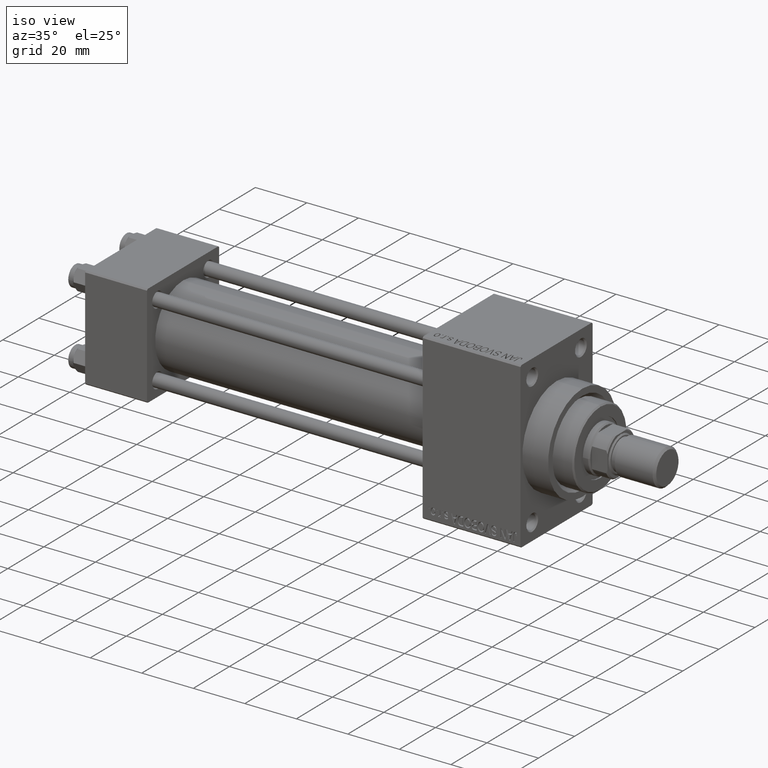
[diagram: clean part render]
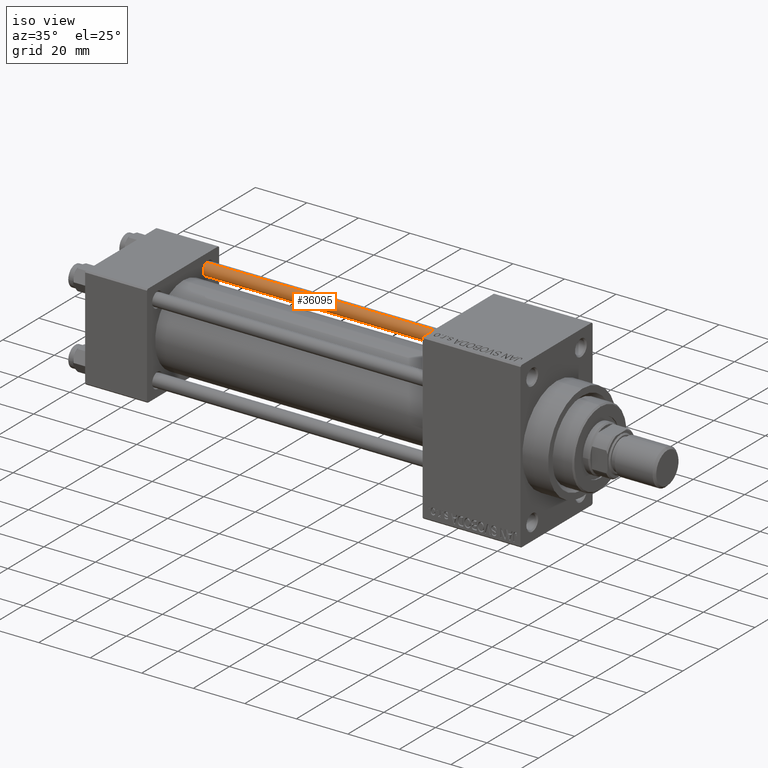
[diagram: same view with one face highlighted and labeled with its STEP entity id]
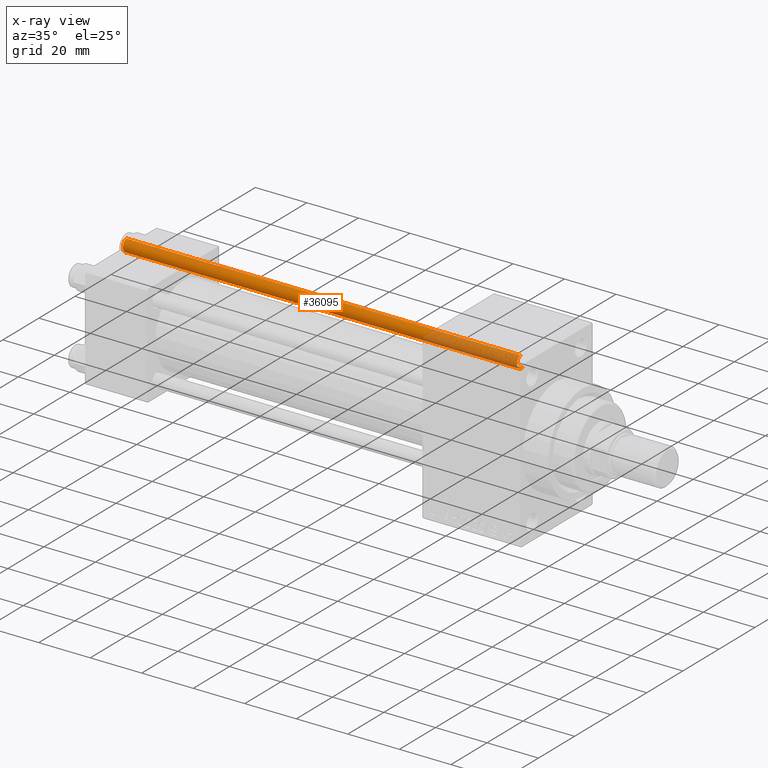
[diagram: x-ray of the same camera — body ghosted, the highlighted face saturated]
A machine part, iso view. The second image highlights one B-rep face of the part: STEP entity #36095.
The next image is the same camera in x-ray: the body ghosted, the highlighted face saturated — about 23% of this face is hidden behind the body in this view.
In plain terms, the highlighted cylindrical surface (edge-blend (fillet) strip) has radius 2.5 mm, axis along (-1, -0, 0).
Its self-contained STEP definition (entity closure, byte-faithful):
#449 = ORIENTED_EDGE ( 'NONE', *, *, #18768, .T. ) ;
#2078 = CARTESIAN_POINT ( 'NONE',  ( 2.500000000000000000, 3.061616997868383141E-16, 153.5000000000000284 ) ) ;
#2536 = ORIENTED_EDGE ( 'NONE', *, *, #16004, .T. ) ;
#4930 = CYLINDRICAL_SURFACE ( 'NONE', #43226, 2.500000000000000000 ) ;
#6013 = VECTOR ( 'NONE', #23324, 1000.000000000000000 ) ;
#8427 = LINE ( 'NONE', #15868, #6013 ) ;
#8439 = VERTEX_POINT ( 'NONE', #2078 ) ;
#9798 = CIRCLE ( 'NONE', #36675, 2.500000000000000000 ) ;
#12154 = EDGE_LOOP ( 'NONE', ( #16756, #2536, #17245, #449 ) ) ;
#14296 = CIRCLE ( 'NONE', #19659, 2.500000000000000000 ) ;
#15766 = DIRECTION ( 'NONE',  ( -0.000000000000000000, -0.000000000000000000, -1.000000000000000000 ) ) ;
#15868 = CARTESIAN_POINT ( 'NONE',  ( 2.500000000000000000, 3.061616997868383141E-16, 154.0000000000000000 ) ) ;
#16004 = EDGE_CURVE ( 'NONE', #8439, #18882, #14296, .T. ) ;
#16756 = ORIENTED_EDGE ( 'NONE', *, *, #42812, .F. ) ;
#17245 = ORIENTED_EDGE ( 'NONE', *, *, #41488, .T. ) ;
#18768 = EDGE_CURVE ( 'NONE', #37721, #31385, #9798, .T. ) ;
#18882 = VERTEX_POINT ( 'NONE', #41752 ) ;
#19659 = AXIS2_PLACEMENT_3D ( 'NONE', #30690, #32932, #29567 ) ;
#19934 = LINE ( 'NONE', #20169, #25226 ) ;
#20169 = CARTESIAN_POINT ( 'NONE',  ( -2.500000000000000000, 0.000000000000000000, 154.0000000000000000 ) ) ;
#23223 = CARTESIAN_POINT ( 'NONE',  ( 0.000000000000000000, 0.000000000000000000, 154.0000000000000000 ) ) ;
#23324 = DIRECTION ( 'NONE',  ( -0.000000000000000000, -0.000000000000000000, -1.000000000000000000 ) ) ;
#25226 = VECTOR ( 'NONE', #34354, 1000.000000000000000 ) ;
#28257 = CARTESIAN_POINT ( 'NONE',  ( -2.500000000000000000, 0.000000000000000000, 0.5000000000000281997 ) ) ;
#29108 = DIRECTION ( 'NONE',  ( -0.000000000000000000, -0.000000000000000000, 1.000000000000000000 ) ) ;
#29567 = DIRECTION ( 'NONE',  ( 1.000000000000000000, 0.000000000000000000, 0.000000000000000000 ) ) ;
#30688 = FACE_OUTER_BOUND ( 'NONE', #12154, .T. ) ;
#30690 = CARTESIAN_POINT ( 'NONE',  ( 0.000000000000000000, 0.000000000000000000, 153.5000000000000284 ) ) ;
#31385 = VERTEX_POINT ( 'NONE', #42081 ) ;
#31751 = DIRECTION ( 'NONE',  ( 1.000000000000000000, 0.000000000000000000, 0.000000000000000000 ) ) ;
#32932 = DIRECTION ( 'NONE',  ( 0.000000000000000000, 0.000000000000000000, -1.000000000000000000 ) ) ;
#34354 = DIRECTION ( 'NONE',  ( -0.000000000000000000, -0.000000000000000000, -1.000000000000000000 ) ) ;
#36077 = CARTESIAN_POINT ( 'NONE',  ( 0.000000000000000000, 0.000000000000000000, 0.5000000000000281997 ) ) ;
#36095 = ADVANCED_FACE ( 'NONE', ( #30688 ), #4930, .T. ) ;
#36675 = AXIS2_PLACEMENT_3D ( 'NONE', #36077, #29108, #31751 ) ;
#37721 = VERTEX_POINT ( 'NONE', #28257 ) ;
#41488 = EDGE_CURVE ( 'NONE', #18882, #37721, #19934, .T. ) ;
#41740 = DIRECTION ( 'NONE',  ( -1.000000000000000000, 0.000000000000000000, 0.000000000000000000 ) ) ;
#41752 = CARTESIAN_POINT ( 'NONE',  ( -2.500000000000000000, 0.000000000000000000, 153.5000000000000284 ) ) ;
#42081 = CARTESIAN_POINT ( 'NONE',  ( 2.500000000000000000, 3.061616997868383141E-16, 0.5000000000000281997 ) ) ;
#42812 = EDGE_CURVE ( 'NONE', #8439, #31385, #8427, .T. ) ;
#43226 = AXIS2_PLACEMENT_3D ( 'NONE', #23223, #15766, #41740 ) ;